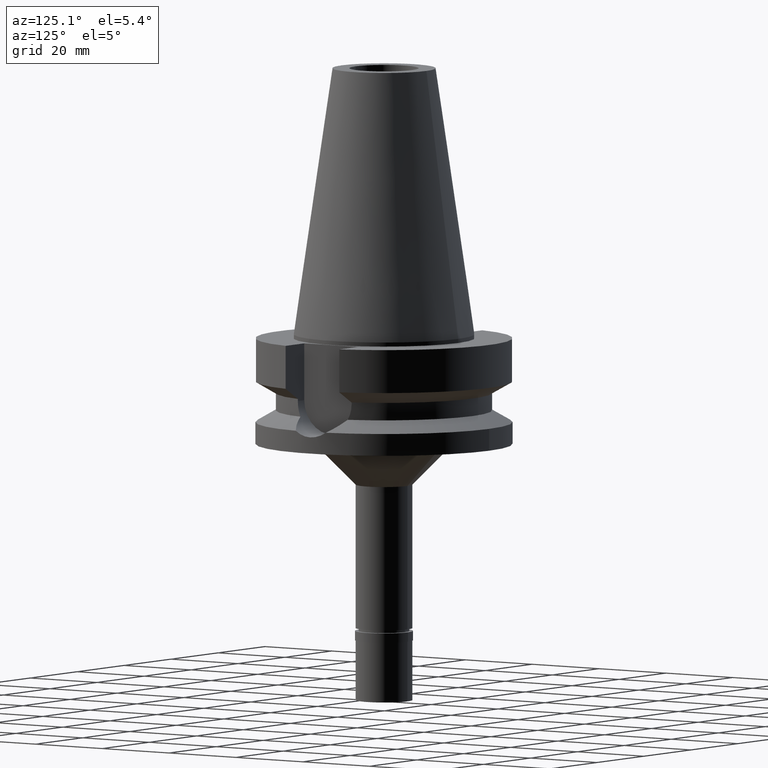
[diagram: clean part render]
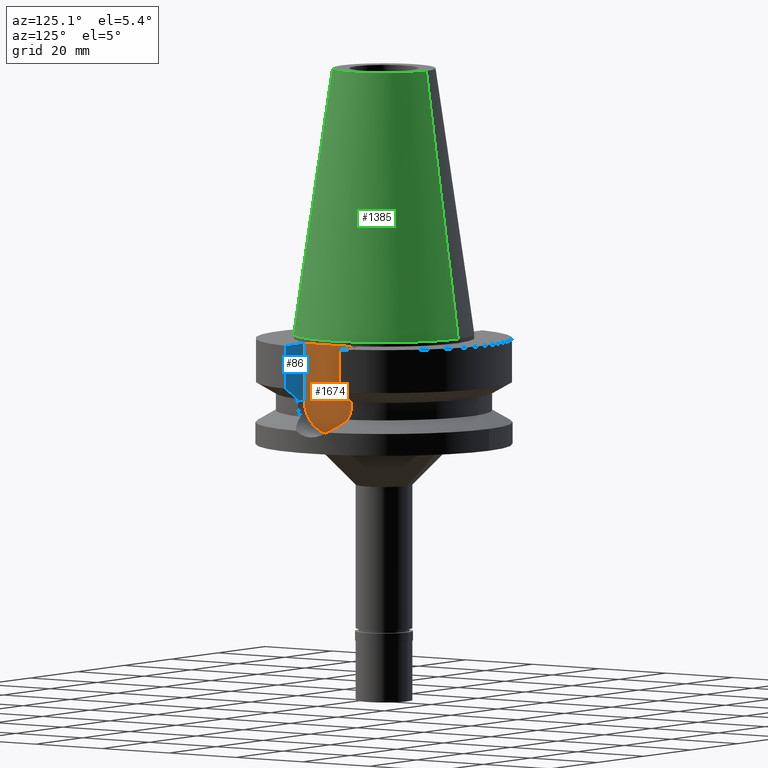
[diagram: same view with three faces highlighted in distinct colors, each labeled with its STEP entity id]
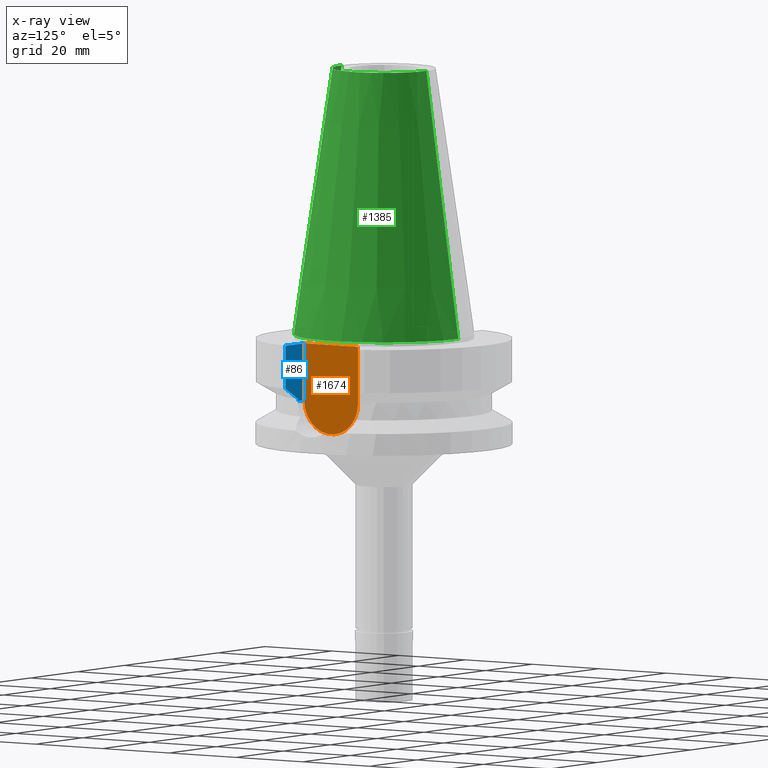
[diagram: x-ray of the same camera — body ghosted, the three highlighted faces saturated]
A machine part, auxiliary view with three faces highlighted in distinct colors.
The next image is the same camera in x-ray (body ghosted, the three faces saturated) — at least one of them is partly hidden behind the body in this view.
Their STEP definitions:

[orange] entity #1674 — the highlighted planar face has unit normal (1, 0, 0).
#8 = ORIENTED_EDGE ( 'NONE', *, *, #2653, .T. ) ;
#23 = VERTEX_POINT ( 'NONE', #1821 ) ;
#432 = PLANE ( 'NONE',  #1925 ) ;
#629 = ORIENTED_EDGE ( 'NONE', *, *, #1817, .F. ) ;
#718 = LINE ( 'NONE', #734, #2676 ) ;
#734 = CARTESIAN_POINT ( 'NONE',  ( 22.50000000000000000, 8.050000000000000711, -1.000000000000000000 ) ) ;
#778 = EDGE_CURVE ( 'NONE', #1374, #2425, #1643, .T. ) ;
#798 = CARTESIAN_POINT ( 'NONE',  ( 22.50000000000000000, 8.050000000000000711, -1.000000000000000000 ) ) ;
#902 = DIRECTION ( 'NONE',  ( 1.000000000000000000, 0.0000000000000000000, 0.0000000000000000000 ) ) ;
#947 = LINE ( 'NONE', #1677, #2505 ) ;
#1124 = DIRECTION ( 'NONE',  ( -1.000000000000000000, 0.0000000000000000000, 0.0000000000000000000 ) ) ;
#1172 = DIRECTION ( 'NONE',  ( 0.0000000000000000000, 0.0000000000000000000, -1.000000000000000000 ) ) ;
#1331 = CARTESIAN_POINT ( 'NONE',  ( 22.50000000000000000, 0.0000000000000000000, 0.0000000000000000000 ) ) ;
#1374 = VERTEX_POINT ( 'NONE', #1649 ) ;
#1505 = CARTESIAN_POINT ( 'NONE',  ( 22.50000000000000000, -8.050000000000000711, -14.94999999999999929 ) ) ;
#1561 = FACE_OUTER_BOUND ( 'NONE', #2787, .T. ) ;
#1580 = CARTESIAN_POINT ( 'NONE',  ( 22.50000000000000000, 0.0000000000000000000, -14.94999999999999929 ) ) ;
#1615 = LINE ( 'NONE', #2521, #2125 ) ;
#1643 = CIRCLE ( 'NONE', #2578, 8.050000000000000711 ) ;
#1649 = CARTESIAN_POINT ( 'NONE',  ( 22.50000000000000000, 8.050000000000000711, -14.94999999999999929 ) ) ;
#1663 = DIRECTION ( 'NONE',  ( 0.0000000000000000000, -1.000000000000000000, 0.0000000000000000000 ) ) ;
#1674 = ADVANCED_FACE ( 'NONE', ( #1561 ), #432, .T. ) ;
#1677 = CARTESIAN_POINT ( 'NONE',  ( 22.50000000000000000, -8.050000000000000711, -14.94999999999999929 ) ) ;
#1756 = ORIENTED_EDGE ( 'NONE', *, *, #2692, .F. ) ;
#1803 = ORIENTED_EDGE ( 'NONE', *, *, #778, .F. ) ;
#1817 = EDGE_CURVE ( 'NONE', #2287, #1374, #718, .T. ) ;
#1821 = CARTESIAN_POINT ( 'NONE',  ( 22.50000000000000000, -8.050000000000000711, -1.000000000000000000 ) ) ;
#1925 = AXIS2_PLACEMENT_3D ( 'NONE', #1331, #902, #2867 ) ;
#2083 = DIRECTION ( 'NONE',  ( 0.0000000000000000000, 0.0000000000000000000, -1.000000000000000000 ) ) ;
#2125 = VECTOR ( 'NONE', #1663, 1000.000000000000000 ) ;
#2287 = VERTEX_POINT ( 'NONE', #798 ) ;
#2425 = VERTEX_POINT ( 'NONE', #1505 ) ;
#2505 = VECTOR ( 'NONE', #2763, 1000.000000000000000 ) ;
#2521 = CARTESIAN_POINT ( 'NONE',  ( 22.50000000000000000, 8.050000000000000711, -1.000000000000000000 ) ) ;
#2578 = AXIS2_PLACEMENT_3D ( 'NONE', #1580, #1124, #1172 ) ;
#2653 = EDGE_CURVE ( 'NONE', #2287, #23, #1615, .T. ) ;
#2676 = VECTOR ( 'NONE', #2083, 1000.000000000000000 ) ;
#2692 = EDGE_CURVE ( 'NONE', #2425, #23, #947, .T. ) ;
#2763 = DIRECTION ( 'NONE',  ( 0.0000000000000000000, 0.0000000000000000000, 1.000000000000000000 ) ) ;
#2787 = EDGE_LOOP ( 'NONE', ( #1756, #1803, #629, #8 ) ) ;
#2867 = DIRECTION ( 'NONE',  ( 0.0000000000000000000, 1.000000000000000000, 0.0000000000000000000 ) ) ;

[blue] entity #86 — the highlighted planar face has unit normal (0, -1, 0).
#23 = VERTEX_POINT ( 'NONE', #1821 ) ;
#86 = ADVANCED_FACE ( 'NONE', ( #886 ), #1792, .F. ) ;
#112 = ORIENTED_EDGE ( 'NONE', *, *, #2692, .T. ) ;
#294 = CARTESIAN_POINT ( 'NONE',  ( 28.57294943336877324, -8.050008286027299675, -12.61547994911452264 ) ) ;
#326 = LINE ( 'NONE', #803, #2447 ) ;
#349 = ORIENTED_EDGE ( 'NONE', *, *, #1835, .T. ) ;
#405 = EDGE_CURVE ( 'NONE', #1232, #1052, #1283, .T. ) ;
#477 = ORIENTED_EDGE ( 'NONE', *, *, #405, .T. ) ;
#480 = CARTESIAN_POINT ( 'NONE',  ( 26.83757721734241031, -8.050003171580135231, -13.57772969958025300 ) ) ;
#650 = ORIENTED_EDGE ( 'NONE', *, *, #1769, .T. ) ;
#672 = DIRECTION ( 'NONE',  ( 0.0000000000000000000, 0.0000000000000000000, -1.000000000000000000 ) ) ;
#702 = VECTOR ( 'NONE', #2410, 999.9999999999998863 ) ;
#803 = CARTESIAN_POINT ( 'NONE',  ( 25.24772266958000344, -8.050000000000000711, -14.94999999999999929 ) ) ;
#825 = ORIENTED_EDGE ( 'NONE', *, *, #1243, .F. ) ;
#886 = FACE_OUTER_BOUND ( 'NONE', #1713, .T. ) ;
#947 = LINE ( 'NONE', #1677, #2505 ) ;
#954 = LINE ( 'NONE', #1432, #2315 ) ;
#1052 = VERTEX_POINT ( 'NONE', #2465 ) ;
#1132 = B_SPLINE_CURVE_WITH_KNOTS ( 'NONE', 3,
 ( #1866, #480, #294, #2317 ),
 .UNSPECIFIED., .F., .F.,
 ( 4, 4 ),
 ( 0.0000000000000000000, 1.000000000000000000 ),
 .UNSPECIFIED. ) ;
#1168 = DIRECTION ( 'NONE',  ( 1.014693311834022080E-06, 3.182448466684070227E-06, -0.9999999999944211293 ) ) ;
#1208 = AXIS2_PLACEMENT_3D ( 'NONE', #1809, #2684, #672 ) ;
#1232 = VERTEX_POINT ( 'NONE', #1622 ) ;
#1243 = EDGE_CURVE ( 'NONE', #2473, #1052, #1132, .T. ) ;
#1283 = LINE ( 'NONE', #1729, #702 ) ;
#1422 = CARTESIAN_POINT ( 'NONE',  ( 25.24772216451000162, -8.050001584080000328, -14.45224489483999974 ) ) ;
#1432 = CARTESIAN_POINT ( 'NONE',  ( 22.50000000000000000, -8.050000000000000711, -1.000000000000000000 ) ) ;
#1505 = CARTESIAN_POINT ( 'NONE',  ( 22.50000000000000000, -8.050000000000000711, -14.94999999999999929 ) ) ;
#1516 = ORIENTED_EDGE ( 'NONE', *, *, #1950, .T. ) ;
#1622 = CARTESIAN_POINT ( 'NONE',  ( 30.45402272279000044, -8.050000000000000711, -1.000000000000000000 ) ) ;
#1677 = CARTESIAN_POINT ( 'NONE',  ( 22.50000000000000000, -8.050000000000000711, -14.94999999999999929 ) ) ;
#1713 = EDGE_LOOP ( 'NONE', ( #1516, #112, #349, #477, #825, #650 ) ) ;
#1729 = CARTESIAN_POINT ( 'NONE',  ( 30.45402272279000044, -8.050000000000000711, -1.000000000000000000 ) ) ;
#1769 = EDGE_CURVE ( 'NONE', #2473, #2293, #2312, .T. ) ;
#1792 = PLANE ( 'NONE',  #1208 ) ;
#1809 = CARTESIAN_POINT ( 'NONE',  ( 22.50000000000000000, -8.050000000000000711, -1.000000000000000000 ) ) ;
#1821 = CARTESIAN_POINT ( 'NONE',  ( 22.50000000000000000, -8.050000000000000711, -1.000000000000000000 ) ) ;
#1835 = EDGE_CURVE ( 'NONE', #23, #1232, #954, .T. ) ;
#1866 = CARTESIAN_POINT ( 'NONE',  ( 25.24772266958000344, -8.050000000000000711, -14.45225699861000024 ) ) ;
#1950 = EDGE_CURVE ( 'NONE', #2293, #2425, #326, .T. ) ;
#2293 = VERTEX_POINT ( 'NONE', #2534 ) ;
#2312 = LINE ( 'NONE', #1422, #2728 ) ;
#2315 = VECTOR ( 'NONE', #2329, 1000.000000000000000 ) ;
#2317 = CARTESIAN_POINT ( 'NONE',  ( 30.45402272279000044, -8.049999999999000622, -11.56550565266999975 ) ) ;
#2329 = DIRECTION ( 'NONE',  ( 1.000000000000000000, 3.573249715389999860E-14, 0.0000000000000000000 ) ) ;
#2410 = DIRECTION ( 'NONE',  ( -1.037365253308017645E-07, -3.924459855690068671E-07, -0.9999999999999177325 ) ) ;
#2415 = CARTESIAN_POINT ( 'NONE',  ( 25.24772266958000344, -8.050000000000000711, -14.45225699861000024 ) ) ;
#2425 = VERTEX_POINT ( 'NONE', #1505 ) ;
#2447 = VECTOR ( 'NONE', #2580, 1000.000000000000000 ) ;
#2465 = CARTESIAN_POINT ( 'NONE',  ( 30.45402272279000044, -8.049999999999000622, -11.56550565266999975 ) ) ;
#2473 = VERTEX_POINT ( 'NONE', #2415 ) ;
#2505 = VECTOR ( 'NONE', #2763, 1000.000000000000000 ) ;
#2534 = CARTESIAN_POINT ( 'NONE',  ( 25.24772266958000344, -8.050000000000000711, -14.94999999999999929 ) ) ;
#2580 = DIRECTION ( 'NONE',  ( -1.000000000000000000, -1.551559937893000172E-14, 0.0000000000000000000 ) ) ;
#2684 = DIRECTION ( 'NONE',  ( 0.0000000000000000000, -1.000000000000000000, 0.0000000000000000000 ) ) ;
#2692 = EDGE_CURVE ( 'NONE', #2425, #23, #947, .T. ) ;
#2728 = VECTOR ( 'NONE', #1168, 1000.000000000000114 ) ;
#2763 = DIRECTION ( 'NONE',  ( 0.0000000000000000000, 0.0000000000000000000, 1.000000000000000000 ) ) ;

[green] entity #1385 — the highlighted conical surface has half-angle 8.297 deg.
#163 = VERTEX_POINT ( 'NONE', #1199 ) ;
#222 = AXIS2_PLACEMENT_3D ( 'NONE', #2247, #2682, #705 ) ;
#354 = ORIENTED_EDGE ( 'NONE', *, *, #1657, .T. ) ;
#388 = EDGE_CURVE ( 'NONE', #163, #1987, #1728, .T. ) ;
#414 = LINE ( 'NONE', #1315, #2891 ) ;
#555 = VECTOR ( 'NONE', #2664, 1000.000000000000114 ) ;
#584 = EDGE_CURVE ( 'NONE', #1980, #163, #414, .T. ) ;
#585 = EDGE_CURVE ( 'NONE', #1980, #896, #1491, .T. ) ;
#705 = DIRECTION ( 'NONE',  ( 0.0000000000000000000, 1.000000000000000000, 0.0000000000000000000 ) ) ;
#860 = LINE ( 'NONE', #1575, #555 ) ;
#870 = DIRECTION ( 'NONE',  ( 0.0000000000000000000, 0.0000000000000000000, -1.000000000000000000 ) ) ;
#878 = AXIS2_PLACEMENT_3D ( 'NONE', #2878, #870, #884 ) ;
#884 = DIRECTION ( 'NONE',  ( 0.0000000000000000000, 1.000000000000000000, 0.0000000000000000000 ) ) ;
#896 = VERTEX_POINT ( 'NONE', #1007 ) ;
#995 = DIRECTION ( 'NONE',  ( 0.0000000000000000000, -1.000000000000000000, 0.0000000000000000000 ) ) ;
#1007 = CARTESIAN_POINT ( 'NONE',  ( 0.0000000000000000000, -12.68766899429999917, 65.40000000000000568 ) ) ;
#1199 = CARTESIAN_POINT ( 'NONE',  ( 0.0000000000000000000, 22.22500000000000142, 1.065814103639999827E-13 ) ) ;
#1315 = CARTESIAN_POINT ( 'NONE',  ( 0.0000000000000000000, 12.68766899429999917, 65.40000000000000568 ) ) ;
#1385 = ADVANCED_FACE ( 'NONE', ( #2519 ), #1494, .T. ) ;
#1461 = CARTESIAN_POINT ( 'NONE',  ( 0.0000000000000000000, -22.22500000000000142, 1.065814103639999827E-13 ) ) ;
#1491 = CIRCLE ( 'NONE', #222, 12.68766899429999917 ) ;
#1494 = CONICAL_SURFACE ( 'NONE', #2314, 17.45633449714999941, 0.1448099680379422438 ) ;
#1575 = CARTESIAN_POINT ( 'NONE',  ( 0.0000000000000000000, -12.68766899429999917, 65.40000000000000568 ) ) ;
#1657 = EDGE_CURVE ( 'NONE', #896, #1987, #860, .T. ) ;
#1702 = CARTESIAN_POINT ( 'NONE',  ( 0.0000000000000000000, 12.68766899429999917, 65.40000000000000568 ) ) ;
#1728 = CIRCLE ( 'NONE', #878, 22.22500000000000142 ) ;
#1878 = CARTESIAN_POINT ( 'NONE',  ( 0.0000000000000000000, 1.625106302469000024E-14, 32.70000000000000284 ) ) ;
#1896 = ORIENTED_EDGE ( 'NONE', *, *, #585, .T. ) ;
#1980 = VERTEX_POINT ( 'NONE', #1702 ) ;
#1987 = VERTEX_POINT ( 'NONE', #1461 ) ;
#2215 = ORIENTED_EDGE ( 'NONE', *, *, #584, .F. ) ;
#2219 = DIRECTION ( 'NONE',  ( 0.0000000000000000000, 0.1443043893539925626, -0.9895333461855498891 ) ) ;
#2247 = CARTESIAN_POINT ( 'NONE',  ( 0.0000000000000000000, 1.625106302469000024E-14, 65.40000000000000568 ) ) ;
#2314 = AXIS2_PLACEMENT_3D ( 'NONE', #1878, #2333, #995 ) ;
#2333 = DIRECTION ( 'NONE',  ( 0.0000000000000000000, 0.0000000000000000000, -1.000000000000000000 ) ) ;
#2357 = ORIENTED_EDGE ( 'NONE', *, *, #388, .F. ) ;
#2519 = FACE_OUTER_BOUND ( 'NONE', #2888, .T. ) ;
#2664 = DIRECTION ( 'NONE',  ( 0.0000000000000000000, -0.1443043893539925626, -0.9895333461855498891 ) ) ;
#2682 = DIRECTION ( 'NONE',  ( 0.0000000000000000000, 0.0000000000000000000, -1.000000000000000000 ) ) ;
#2878 = CARTESIAN_POINT ( 'NONE',  ( 0.0000000000000000000, 1.625106302469000024E-14, 2.842170943039999687E-14 ) ) ;
#2888 = EDGE_LOOP ( 'NONE', ( #1896, #354, #2357, #2215 ) ) ;
#2891 = VECTOR ( 'NONE', #2219, 1000.000000000000114 ) ;